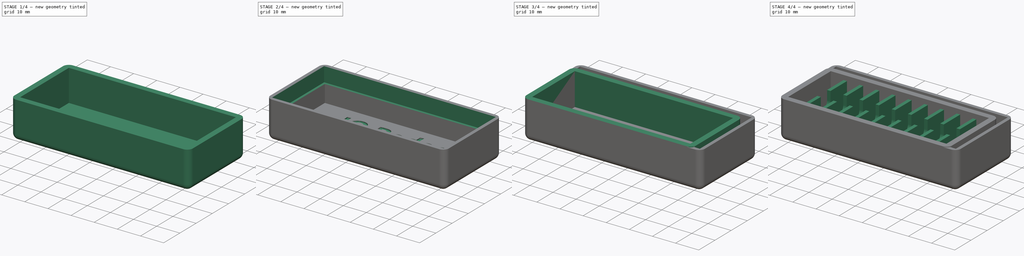
[diagram: build sequence overview — one tinted view per stage of 4, left to right]
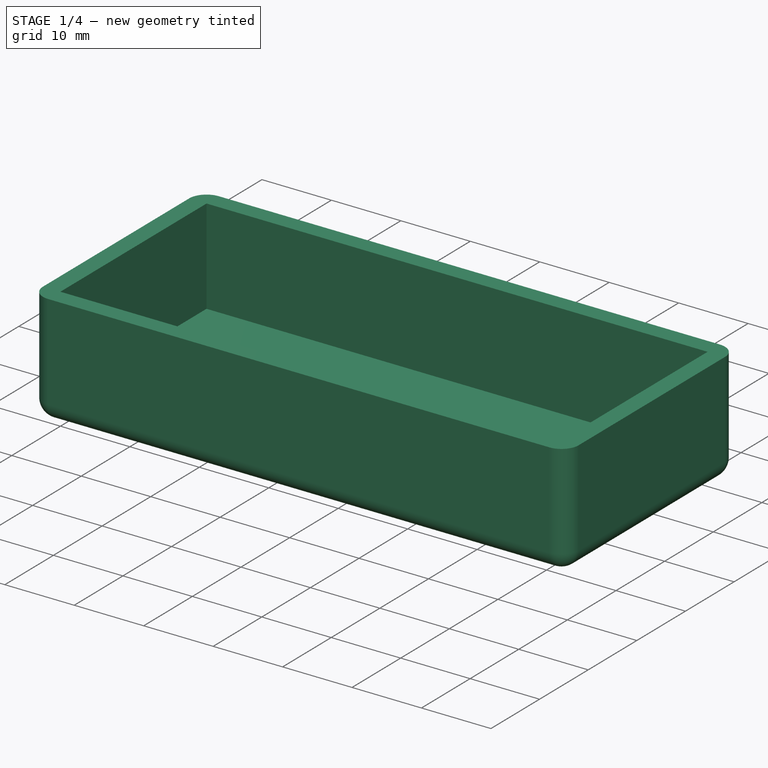
[diagram: stage 1 of 4 — iso view after this stage's code; geometry added in this stage tinted green]
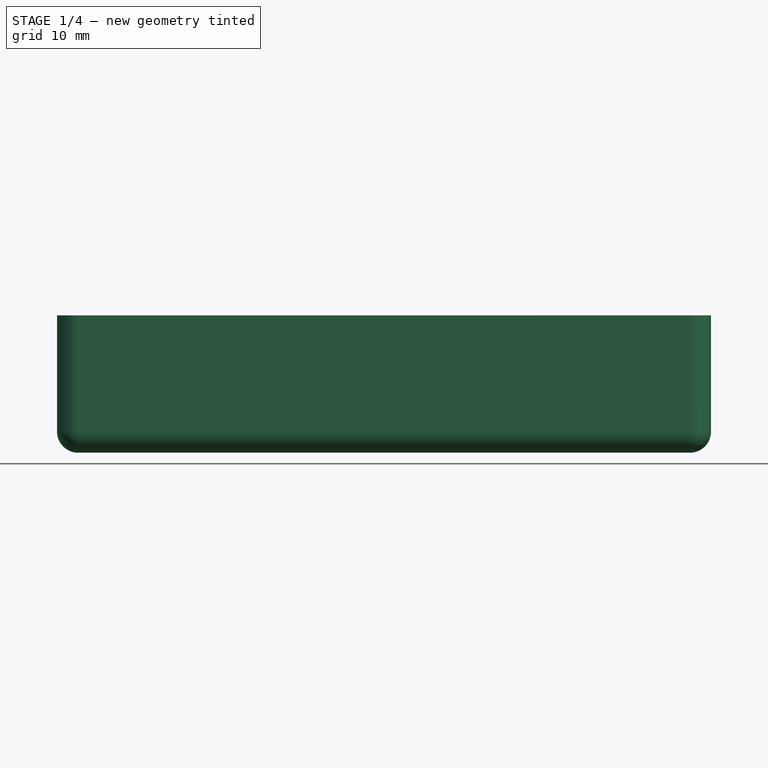
[diagram: stage 1 of 4 — front view after this stage's code; geometry added in this stage tinted green]
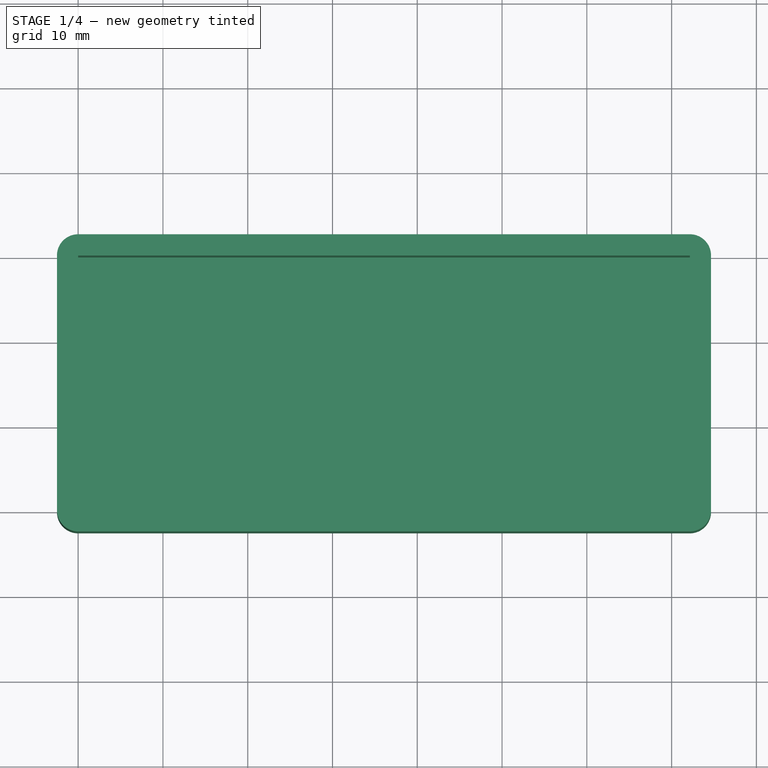
[diagram: stage 1 of 4 — top view after this stage's code; geometry added in this stage tinted green]
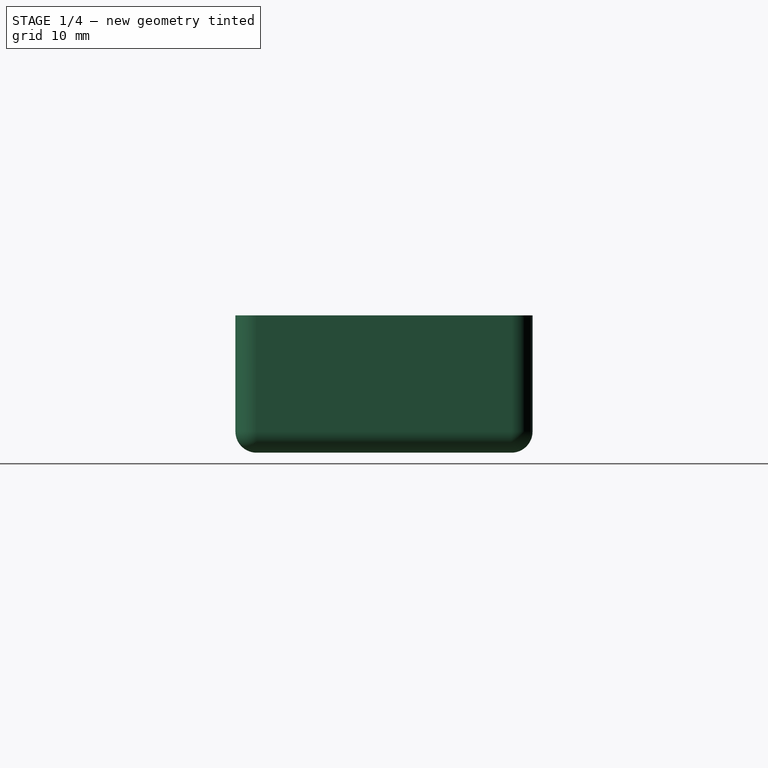
[diagram: stage 1 of 4 — right view after this stage's code; geometry added in this stage tinted green]
FCSTD DOCUMENT  (FreeCAD 0.21R33694 (Git))
Label: led_board_box
License: All rights reserved
LicenseURL: https://en.wikipedia.org/wiki/All_rights_reserved
objects: PartDesign::Pocket×4, Sketcher::SketchObject×3, Part::Box×2, Part::Thickness×2, PartDesign::FeatureBase×2, PartDesign::Body×2, Part::Part2DObjectPython×2, Spreadsheet::Sheet×1, PartDesign::Pad×1, PartDesign::LinearPattern×1, PartDesign::Plane×1
note: 25 computed .brp shape members not serialized (recipe doc carries the construction recipe); baked Part::Feature solids carry a one-line shape summary decoded from their .brp

FEATURE [Part::Box] Box001  label="BoxLidInteriorCube"
  AttacherType = Attacher::AttachEngine3D
  Height = 13.7
  Length = 72.15
  Width = 30.05
  expr: Height = Spreadsheet.lid_inside_height
  expr: Length = Spreadsheet.lid_inside_length
  expr: Width = Spreadsheet.lid_inside_width
FEATURE [Part::Thickness] Thickness001  label="BoxLidThickness"
  Faces = -> Box001 [Face6]
  Intersection = false
  Join = 0
  Mode = 0
  SelfIntersection = false
  Value = 2.5
  expr: Value = Spreadsheet.wall_thickness
FEATURE [PartDesign::FeatureBase] BaseFeature001
  BaseFeature = -> Thickness001
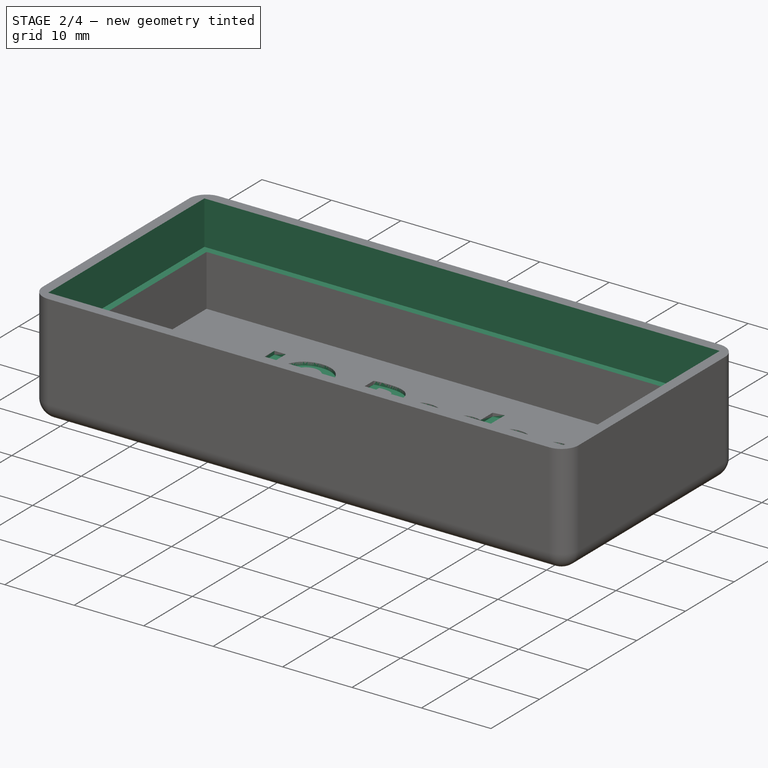
[diagram: stage 2 of 4 — iso view after this stage's code; geometry added in this stage tinted green]
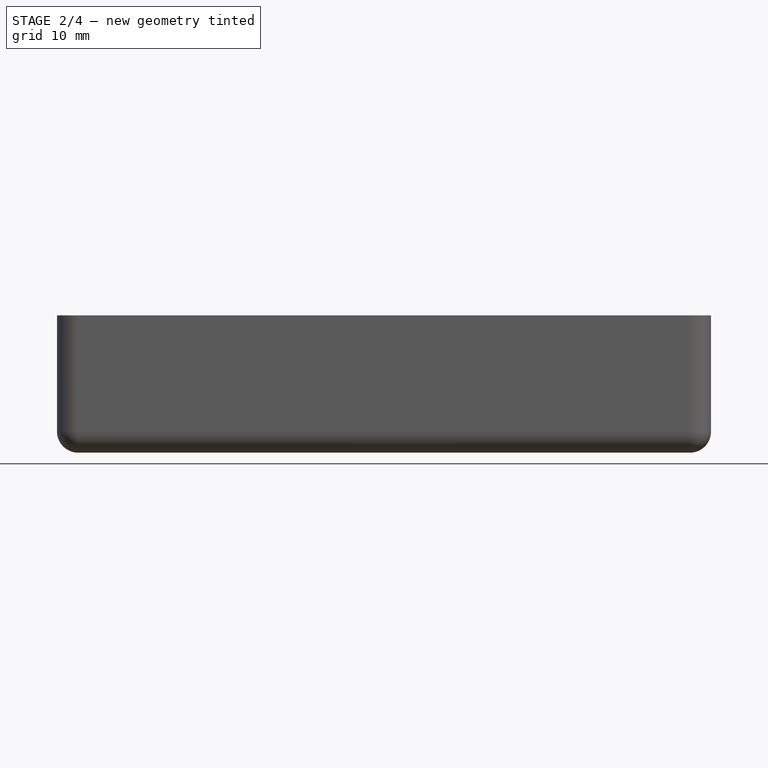
[diagram: stage 2 of 4 — front view after this stage's code; geometry added in this stage tinted green]
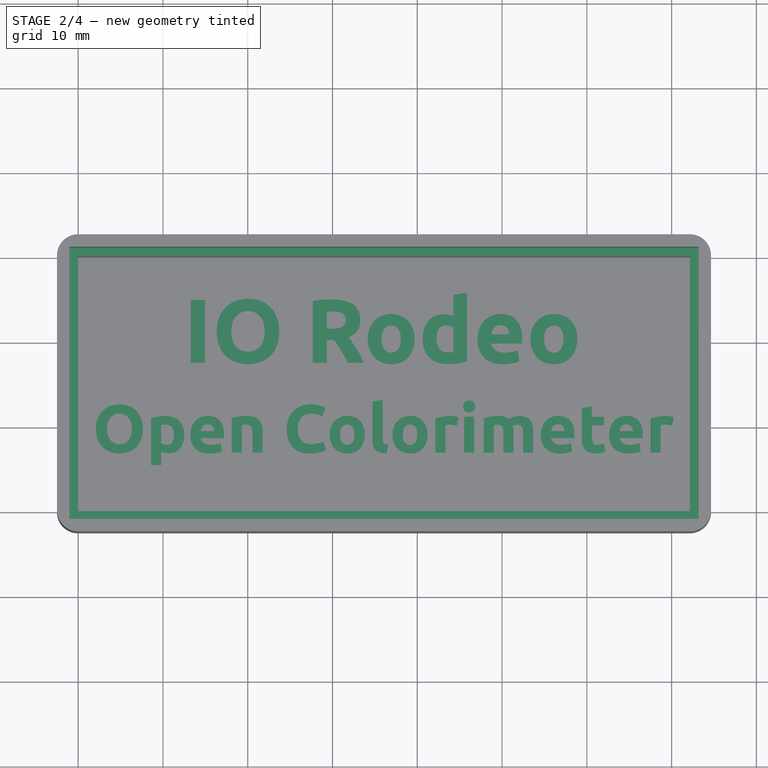
[diagram: stage 2 of 4 — top view after this stage's code; geometry added in this stage tinted green]
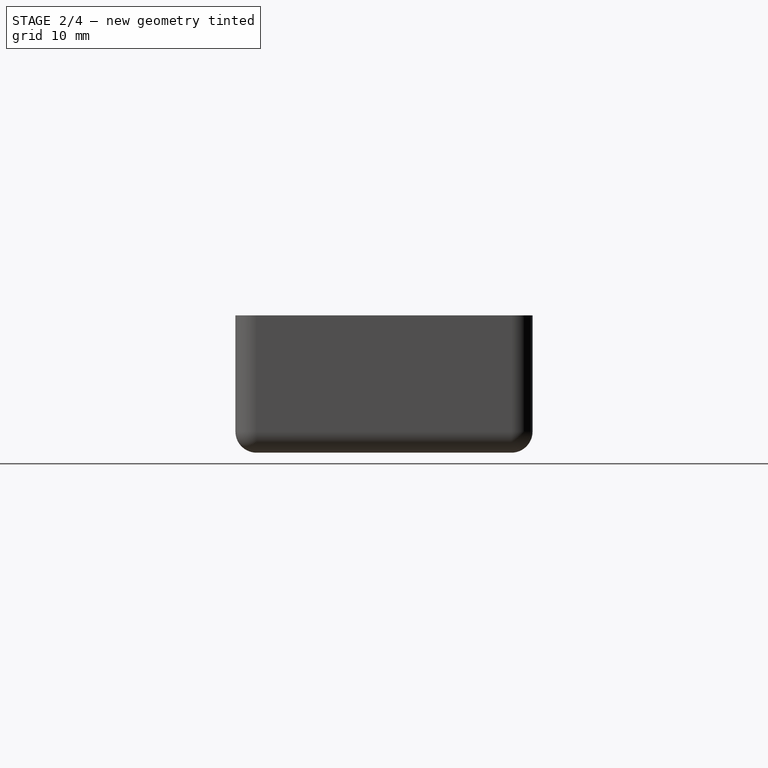
[diagram: stage 2 of 4 — right view after this stage's code; geometry added in this stage tinted green]
FEATURE [PartDesign::Plane] DatumPlane  label="LidCutoutDatumPlane"
  AttachmentOffset = pos=(0,0,7.4) rot=(0,0,1;0rad)
  Length = 114.796
  MapMode = 5
  Placement = pos=(0,0,7.4) rot=(0,0,1;0rad)
  ResizeMode = 0
  Support = -> [XY_Plane001]
  Width = 72.6958
  expr: .AttachmentOffset.Base.z = Spreadsheet.lid_cutout_datum_plane_offset
FEATURE [Sketcher::SketchObject] Sketch001  label="LidCutoutSketch"
  FullyConstrained = true
  MapMode = 5
  Placement = pos=(0,0,7.4) rot=(0,0,1;0rad)
  Support = -> [DatumPlane]
  expr: Constraints[10] = Spreadsheet.lid_inside_width
  expr: Constraints[11] = Spreadsheet.lid_inside_length
  expr: Constraints[22] = Spreadsheet.lid_cutout_width
  expr: Constraints[23] = Spreadsheet.lid_cutout_length
  sketch-geometry (10):
    g0: LineSegment StartX=0 StartY=30.05 StartZ=0 EndX=0 EndY=0 EndZ=0
    g1: LineSegment StartX=0 StartY=0 StartZ=0 EndX=72.15 EndY=0 EndZ=0
    g2: LineSegment StartX=72.15 StartY=0 StartZ=0 EndX=72.15 EndY=30.05 EndZ=0
    g3: LineSegment StartX=72.15 StartY=30.05 StartZ=0 EndX=0 EndY=30.05 EndZ=0
    g4: GeomPoint X=36.075 Y=15.025 Z=0
    g5: LineSegment StartX=-1.025 StartY=31.075 StartZ=0 EndX=-1.025 EndY=-1.025 EndZ=0
    g6: LineSegment StartX=-1.025 StartY=-1.025 StartZ=0 EndX=73.175 EndY=-1.025 EndZ=0
    g7: LineSegment StartX=73.175 StartY=-1.025 StartZ=0 EndX=73.175 EndY=31.075 EndZ=0
    g8: LineSegment StartX=73.175 StartY=31.075 StartZ=0 EndX=-1.025 EndY=31.075 EndZ=0
    g9: GeomPoint X=36.075 Y=15.025 Z=0
  constraints (24):
    c: Coincident(g0,g1)
    c: Coincident(g1,g2)
    c: Coincident(g2,g3)
    c: Coincident(g3,g0)
    c: Horizontal(g1)
    c: Horizontal(g3)
    c: Vertical(g0)
    c: Vertical(g2)
    c: Symmetric(g1,g0,g4)
    c: Coincident(g0,g-1)
    c: DistanceY(g0,g0) = 30.05
    c: DistanceX(g1,g1) = 72.15
    c: Coincident(g5,g6)
    c: Coincident(g6,g7)
    c: Coincident(g7,g8)
    c: Coincident(g8,g5)
    c: Horizontal(g6)
    c: Horizontal(g8)
    c: Vertical(g5)
    c: Vertical(g7)
    c: Symmetric(g6,g5,g9)
    c: Coincident(g9,g4)
    c: DistanceY(g5,g5) = 32.1
    c: DistanceX(g6,g6) = 74.2
FEATURE [PartDesign::Pocket] Pocket  label="LidCutoutPocket"
  BaseFeature = -> BaseFeature001
  Direction = (0,0,-1)
  Length = 5
  Length2 = 5
  Profile = -> Sketch001
  ReferenceAxis = -> Sketch001 [N_Axis]
  Reversed = true
  Type = 1
FEATURE [PartDesign::Body] Body  label="BoxBottomBody"
  BaseFeature = -> Thickness
  Group = -> [BaseFeature,Sketch,Pad,LinearPattern,Sketch002,Pocket001]
  Origin = -> Origin
  Tip = -> Pocket001
FEATURE [Part::Part2DObjectPython] ShapeString  label="IORodeoShapeString"  # Draft 2D object (typed FeaturePython)
  FontFile = <userpath>/work/products/led_board_box/freecad/font/Ubuntu-B.ttf
  MakeFace = true
  Placement = pos=(12.421,17.6095,0) rot=(0,0,1;0rad)
  Size = 4
  String = IO Rodeo
  Tracking = 0
FEATURE [Part::Part2DObjectPython] ShapeString001  label="URLShapeString"  # Draft 2D object (typed FeaturePython)
  FontFile = <userpath>/work/products/led_board_box/freecad/font/Ubuntu-B.ttf
  MakeFace = true
  Placement = pos=(1.69649,7.03315,0) rot=(0,0,1;0rad)
  Size = 3
  String = Open Colorimeter
  Tracking = 0
FEATURE [PartDesign::Pocket] Pocket002  label="IORodeoStringPocket"
  BaseFeature = -> Pocket
  Direction = (0,0,-1)
  Length = 0.5
  Length2 = 5
  Profile = -> ShapeString
  ReferenceAxis = -> ShapeString [N_Axis]
  Type = 0
FEATURE [PartDesign::Pocket] Pocket003  label="URLStringPocket"
  BaseFeature = -> Pocket002
  Direction = (0,0,-1)
  Length = 0.5
  Length2 = 5
  Profile = -> ShapeString001
  ReferenceAxis = -> ShapeString001 [N_Axis]
  Type = 0
FEATURE [PartDesign::Body] Body001  label="BoxLidBody"
  BaseFeature = -> Thickness001
  Group = -> [BaseFeature001,DatumPlane,Sketch001,Pocket,ShapeString,ShapeString001,Pocket002,Pocket003]
  Origin = -> Origin001
  Tip = -> Pocket003
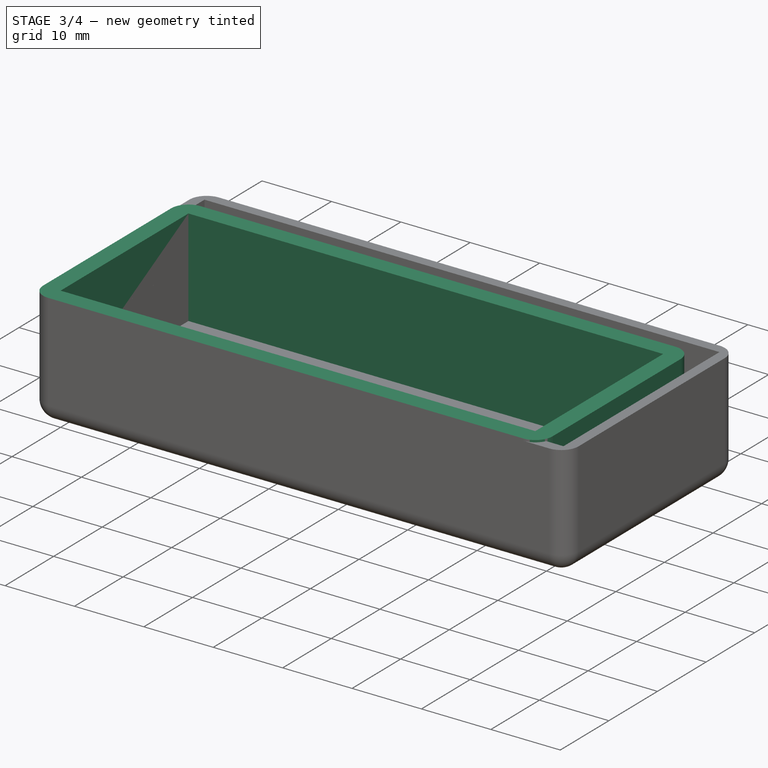
[diagram: stage 3 of 4 — iso view after this stage's code; geometry added in this stage tinted green]
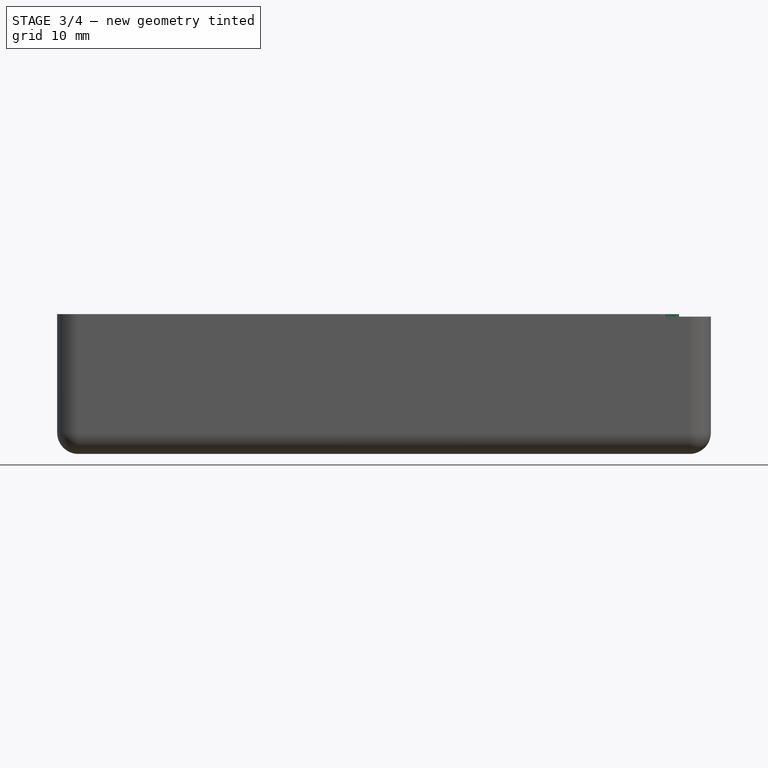
[diagram: stage 3 of 4 — front view after this stage's code; geometry added in this stage tinted green]
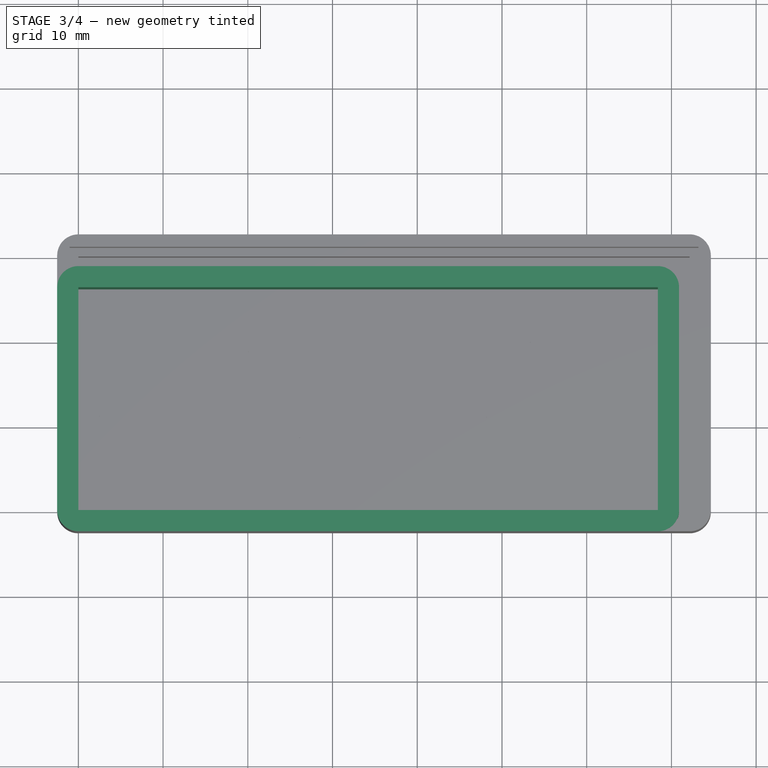
[diagram: stage 3 of 4 — top view after this stage's code; geometry added in this stage tinted green]
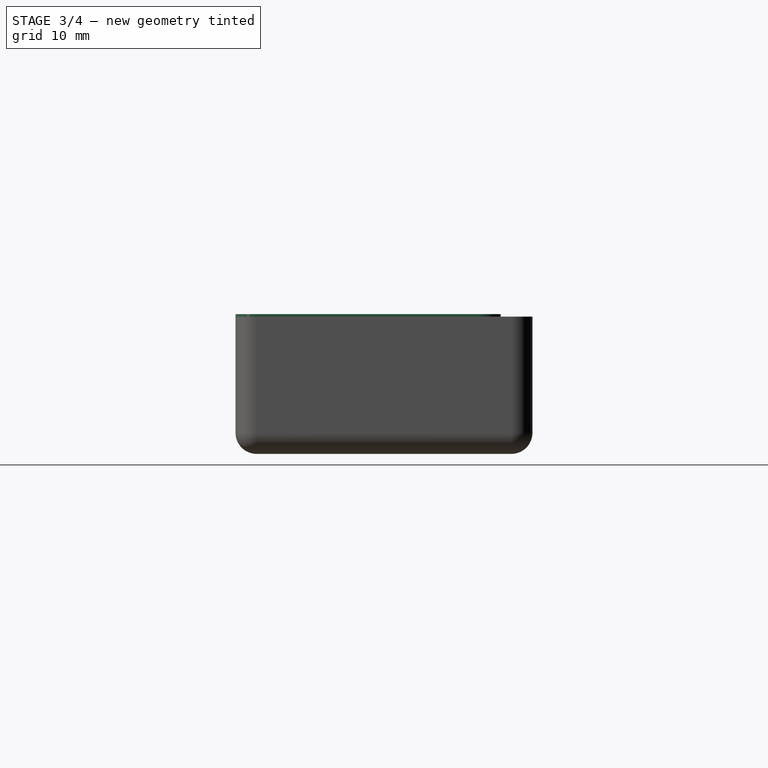
[diagram: stage 3 of 4 — right view after this stage's code; geometry added in this stage tinted green]
FEATURE [Spreadsheet::Sheet] Spreadsheet
  cells = A2='Design Parameters; A3='led_board_width; B3(led_board_width)==25.5 mm; A4='led_board_height; B4(led_board_height)==20.1 mm; A5='led_board_thickness; B5(led_board_thickness)==4.69 mm; A7='led_board_side_margin; B7(led_board_side_margin)==0.4 mm; A8='led_board_face_margin; B8(led_board_face_margin)==0.4 mm; A10='wall_thickness; B10(wall_thickness)==2.5 mm; A11='divider_thickness; B11(divider_thickness)==1.5 mm; A13='number_of_cells; B13(number_of_cells)=10; A14='led_board_slot_length; B14(led_board_slot_length)==led_board_thickness + 2 * led_board_face_margin; A15='led_board_cell_length; B15(led_board_cell_length)==led_board_slot_length + divider_thickness; A17='box_inside_width; B17(box_inside_width)==led_board_width + 2 * led_board_face_margin; A18='box_inside_length; B18(box_inside_length)==number_of_cells * led_board_cell_length - divider_thickness; A19='box_inside_height; B19(box_inside_height)==14 mm; A21='box_outside_width; B21(box_outside_width)==box_inside_width + 2 * wall_thickness; A22='box_outside_length; B22(box_outside_length)==box_inside_length + 2 * wall_thickness; A23='box_outside_height; B23(box_outside_height)==box_inside_height + wall_thickness; A25='divider_height; B25(divider_height)==box_inside_height - 2 mm; A26='divider_array_length; B26(divider_array_length)==(number_of_cells - 1) * led_board_cell_length; A28='led_cutout_depth; B28(led_cutout_depth)==7 mm; A29='led_cutout_width; B29(led_cutout_width)==6 mm; A31='lid_vertical_overlap; B31(lid_vertical_overlap)==0.4 * box_outside_height; A32='lid_horizontal_overlap; B32(lid_horizontal_overlap)==0.5 * wall_thickness; A33='lid_height_margin; B33(lid_height_margin)==1 mm; A34='lid_fit_margin; B34(lid_fit_margin)==0.4 mm; A35='lid_inside_width; B35(lid_inside_width)==box_outside_width - lid_horizontal_overlap; A36='lid_inside_length; B36(lid_inside_length)==box_outside_length - lid_horizontal_overlap; A37='lid_inside_height; B37(lid_inside_height)==led_board_height - box_inside_height + lid_vertical_overlap + lid_height_margin; A38='lid_cutout_datum_plane_offset; B38(lid_cutout_datum_plane_offset)==box_inside_height - lid_vertical_overlap; A39='lid_cutout_width; B39(lid_cutout_width)==box_outside_width + 2 * lid_fit_margin; A40='lid_cutout_length; B40(lid_cutout_length)==box_outside_length + 2 * lid_fit_margin
FEATURE [Part::Box] Box  label="BoxInteriorCube"
  AttacherType = Attacher::AttachEngine3D
  Height = 14
  Length = 68.4
  Width = 26.3
  expr: Height = Spreadsheet.box_inside_height
  expr: Length = Spreadsheet.box_inside_length
  expr: Width = Spreadsheet.box_inside_width
FEATURE [Part::Thickness] Thickness  label="BoxBottomThickness"
  Faces = -> Box [Face6]
  Intersection = false
  Join = 0
  Mode = 0
  SelfIntersection = false
  Value = 2.5
  expr: Value = Spreadsheet.wall_thickness
FEATURE [PartDesign::FeatureBase] BaseFeature
  BaseFeature = -> Thickness
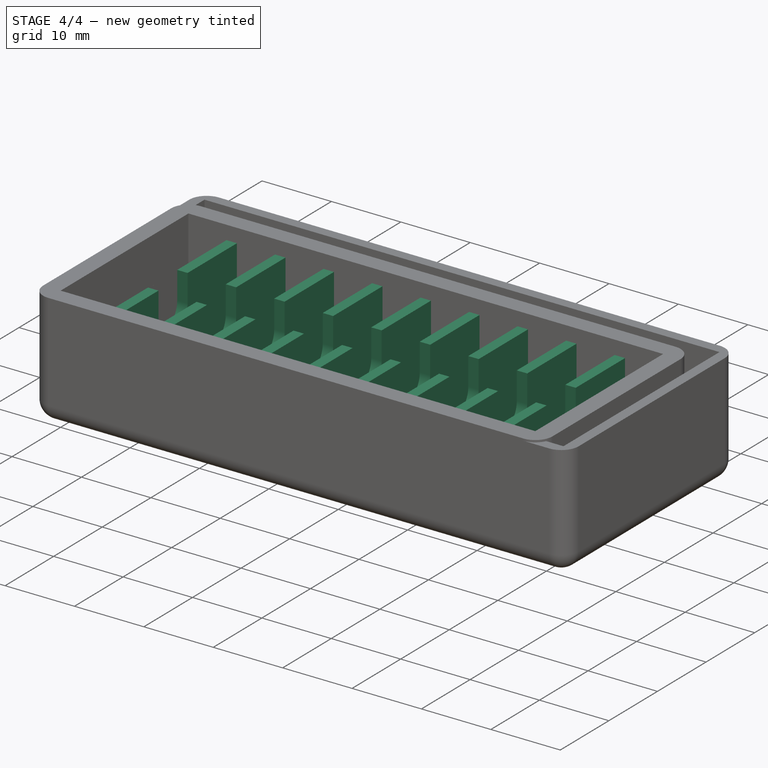
[diagram: stage 4 of 4 — iso view after this stage's code; geometry added in this stage tinted green]
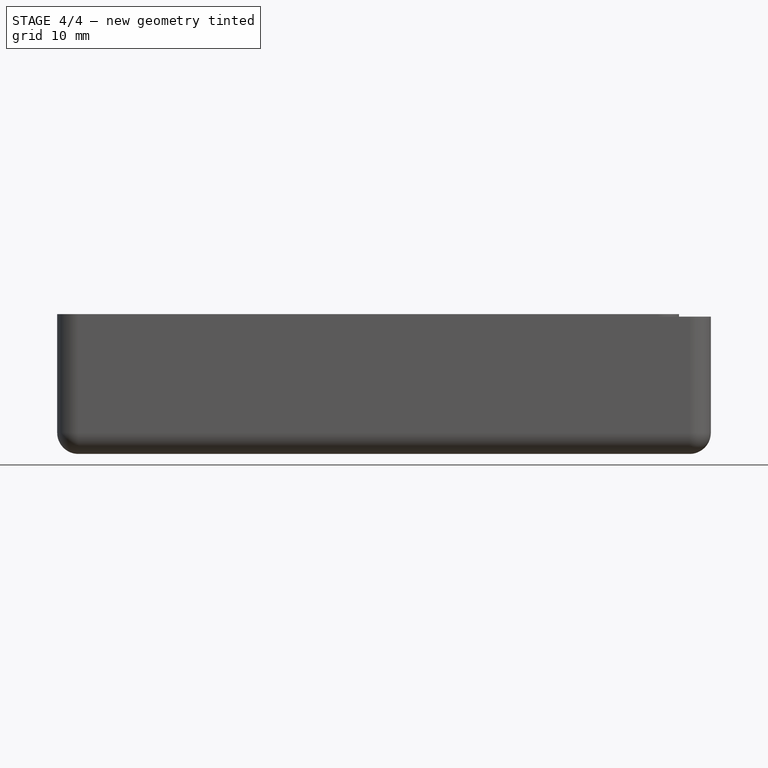
[diagram: stage 4 of 4 — front view after this stage's code; geometry added in this stage tinted green]
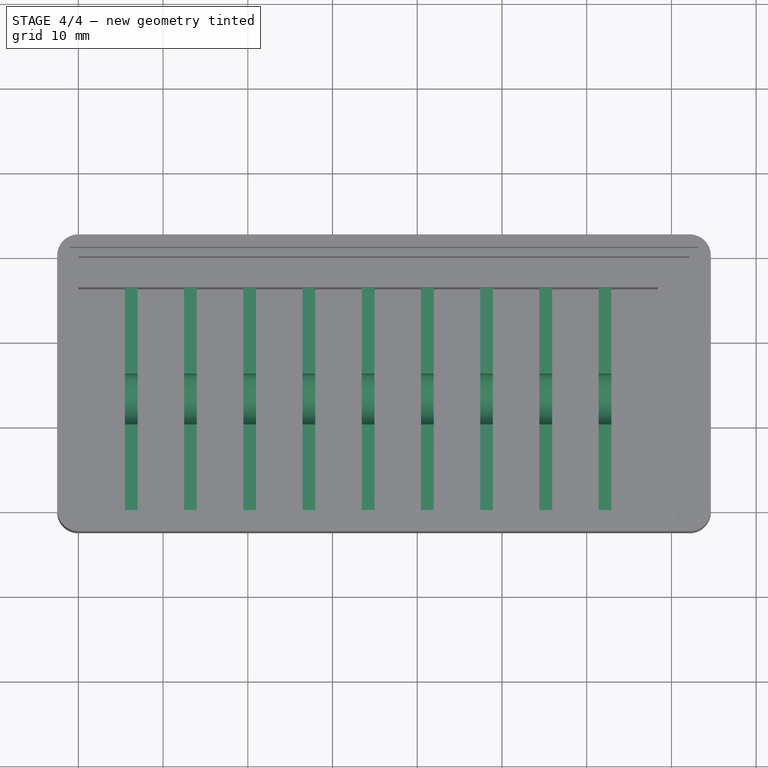
[diagram: stage 4 of 4 — top view after this stage's code; geometry added in this stage tinted green]
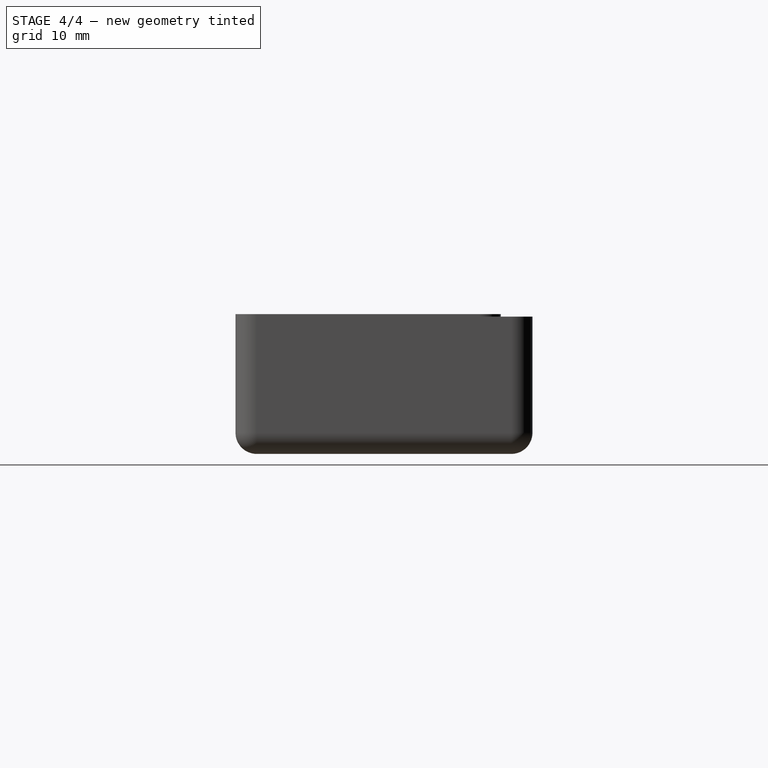
[diagram: stage 4 of 4 — right view after this stage's code; geometry added in this stage tinted green]
FEATURE [Sketcher::SketchObject] Sketch  label="LedBoardCellSketch"
  FullyConstrained = true
  MapMode = 5
  Support = -> [XY_Plane]
  expr: Constraints[12] = Spreadsheet.divider_thickness
  expr: Constraints[13] = Spreadsheet.box_inside_width
  expr: Constraints[2] = Spreadsheet.led_board_slot_length
  sketch-geometry (5):
    g0: LineSegment StartX=0 StartY=0 StartZ=0 EndX=5.49 EndY=0 EndZ=0
    g1: LineSegment StartX=5.49 StartY=26.3 StartZ=0 EndX=6.99 EndY=26.3 EndZ=0
    g2: LineSegment StartX=6.99 StartY=26.3 StartZ=0 EndX=6.99 EndY=0 EndZ=0
    g3: LineSegment StartX=6.99 StartY=0 StartZ=0 EndX=5.49 EndY=0 EndZ=0
    g4: LineSegment StartX=5.49 StartY=0 StartZ=0 EndX=5.49 EndY=26.3 EndZ=0
  constraints (14):
    c: Horizontal(g0)
    c: Coincident(g-1,g0)
    c: DistanceX(g0,g0) = 5.49
    c: Coincident(g1,g2)
    c: Coincident(g2,g3)
    c: Coincident(g3,g4)
    c: Coincident(g4,g1)
    c: Horizontal(g1)
    c: Horizontal(g3)
    c: Vertical(g2)
    c: Vertical(g4)
    c: Coincident(g3,g0)
    c: DistanceX(g1,g1) = 1.5
    c: DistanceY(g2,g2) = 26.3
FEATURE [PartDesign::Pad] Pad  label="LedBoardCellPad"
  BaseFeature = -> BaseFeature
  Direction = (0,0,1)
  Length = 12
  Length2 = 10
  Profile = -> Sketch
  ReferenceAxis = -> Sketch [N_Axis]
  Type = 0
  expr: Length = Spreadsheet.divider_height
FEATURE [PartDesign::LinearPattern] LinearPattern  label="LedBoardCellLinearPattern"
  BaseFeature = -> Pad
  Direction = -> Sketch [H_Axis]
  Length = 62.91
  Occurrences = 10
  Originals = -> [Pad]
  expr: Length = Spreadsheet.divider_array_length
  expr: Occurrences = Spreadsheet.number_of_cells
FEATURE [Sketcher::SketchObject] Sketch002  label="LedCutoutSketch"
  FullyConstrained = true
  MapMode = 5
  Placement = pos=(0,0,0) rot=(0.57735,0.57735,0.57735;2.0944rad)
  Support = -> [YZ_Plane]
  expr: Constraints[10] = Spreadsheet.divider_height
  expr: Constraints[14] = Spreadsheet.led_cutout_width
  expr: Constraints[17] = Spreadsheet.led_cutout_depth
  expr: Constraints[9] = Spreadsheet.box_inside_width
  sketch-geometry (11):
    g0: LineSegment StartX=0 StartY=12 StartZ=0 EndX=26.3 EndY=12 EndZ=0
    g1: LineSegment StartX=26.3 StartY=12 StartZ=0 EndX=26.3 EndY=0 EndZ=0
    g2: LineSegment StartX=26.3 StartY=0 StartZ=0 EndX=0 EndY=0 EndZ=0
    g3: LineSegment StartX=0 StartY=0 StartZ=0 EndX=0 EndY=12 EndZ=0
    g4: GeomPoint X=13.15 Y=12 Z=0
    g5: LineSegment StartX=10.15 StartY=12 StartZ=0 EndX=16.15 EndY=12 EndZ=0
    g6: LineSegment StartX=13.15 StartY=12 StartZ=0 EndX=13.15 EndY=5 EndZ=0
    g7: LineSegment StartX=10.15 StartY=12 StartZ=0 EndX=10.15 EndY=8 EndZ=0
    g8: LineSegment StartX=16.15 StartY=12 StartZ=0 EndX=16.15 EndY=8 EndZ=0
    g9: ArcOfCircle CenterX=13.15 CenterY=8 CenterZ=0 NormalX=0 NormalY=0 NormalZ=1 AngleXU=0 Radius=3 StartAngle=3.14159 EndAngle=6.28319
    g10: LineSegment StartX=13.15 StartY=5 StartZ=0 EndX=13.15 EndY=0 EndZ=0
  constraints (29):
    c: Coincident(g0,g1)
    c: Coincident(g1,g2)
    c: Coincident(g2,g3)
    c: Coincident(g3,g0)
    c: Horizontal(g0)
    c: Horizontal(g2)
    c: Vertical(g1)
    c: Vertical(g3)
    c: Coincident(g2,g-1)
    c: DistanceX(g2,g2) = 26.3
    c: DistanceY(g3,g3) = 12
    c: Symmetric(g0,g0,g4)
    c: Horizontal(g5)
    c: Symmetric(g5,g5,g4)
    c: DistanceX(g5,g5) = 6
    c: Vertical(g6)
    c: Coincident(g6,g4)
    c: DistanceY(g6,g6) = 7
    c: Coincident(g7,g5)
    c: Vertical(g7)
    c: Coincident(g8,g5)
    c: Vertical(g8)
    c: PointOnObject(g6,g9)
    c: Tangent(g9,g7) = -1.5708
    c: Tangent(g9,g8) = 1.5708
    c: Coincident(g10,g6)
    c: Vertical(g10)
    c: PointOnObject(g10,g2)
    c: DistanceY(g10,g10) = 5
FEATURE [PartDesign::Pocket] Pocket001  label="LedCutoutPocket"
  BaseFeature = -> LinearPattern
  Direction = (-1,2e-16,-3e-16)
  Length = 68.4
  Length2 = 5
  Profile = -> Sketch002
  ReferenceAxis = -> Sketch002 [N_Axis]
  Reversed = true
  Type = 0
  expr: Length = Spreadsheet.box_inside_length
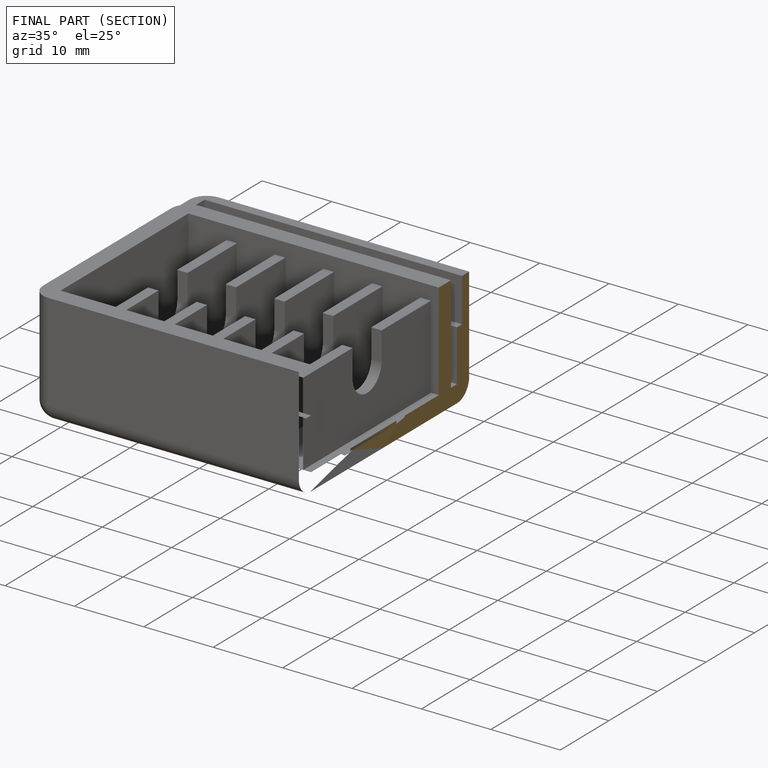
[diagram: finished part — half-section view (interior)]
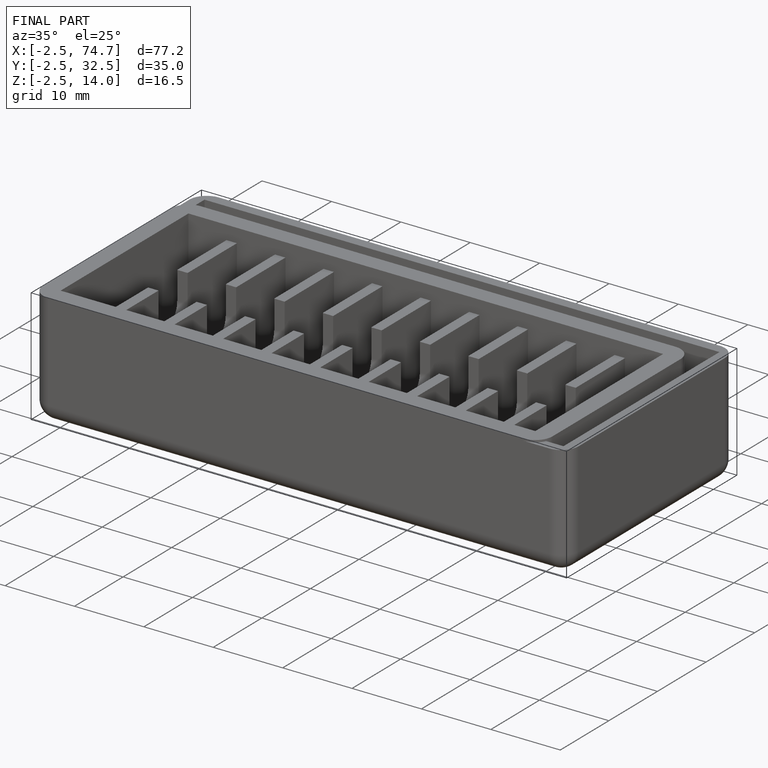
[diagram: finished part — iso view with bounding-box wireframe]
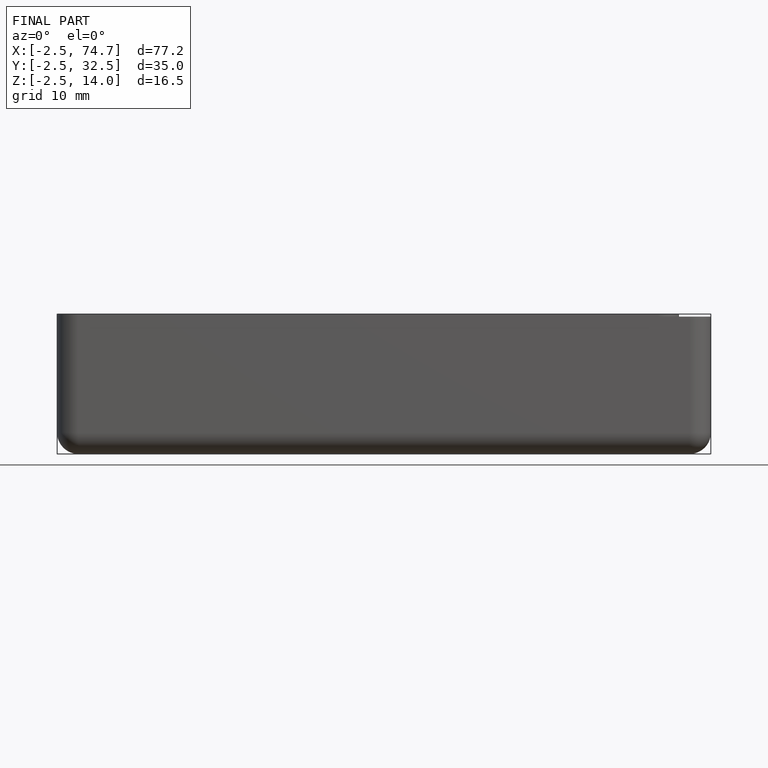
[diagram: finished part — front view with bounding-box wireframe]
